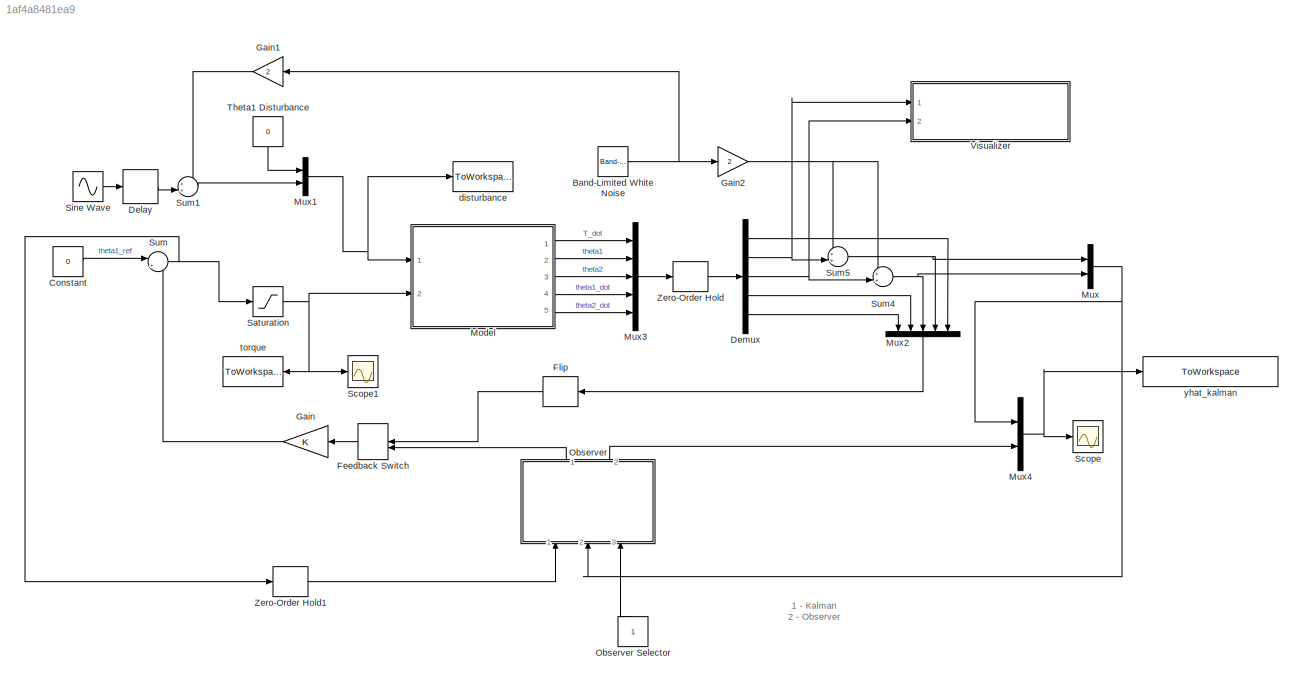
MODEL slx_1af4a8481ea9
KIND model
CONFIG AbsTol = auto
CONFIG EnableMultiTasking = on
CONFIG FixedStep = Ts
CONFIG MaxStep = auto
CONFIG MinStep = auto
CONFIG RelTol = 1e-4
CONFIG SampleTimeConstraint = Unconstrained
CONFIG Solver = VariableStepAuto
CONFIG SolverName = VariableStepAuto
CONFIG StartFcn = par_struct
CONFIG StartTime = 0.0
CONFIG StopTime = 10
WORKSPACE source: MAT-file member
WORKSPACE A = [0.725776748419 0.00140279437205 -0.00302972158237 0.127342671518 -0.275479681015 0 0.999944490331 0.00580760965337 -0.00589430256759 1.15113945046 0 -5.55096688988e-05 ... (25 elements, 5x5)]
WORKSPACE B = [-11.2592502197 -0.00918249434523 0.019826227923 -1.84605491293 3.98706504917]
BLOCK [Reference] Band-Limited White Noise  REF=simulink/Sources/Band-Limited
White Noise
  Ports = [0, 1]
  SourceBlock = simulink/Sources/Band-Limited\nWhite Noise
  SourceProductBaseCode = SL
  SourceProductName = Simulink
  SourceType = Band-Limited White Noise.
BLOCK [Constant] Constant
  SampleTime = -1
  Value = 0
BLOCK [Delay] Delay
  DelayLength = 100
  InputPortMap = u0
  Ports = [1, 1]
  SampleTime = Ts
BLOCK [Demux] Demux
  DisplayOption = bar
  Outputs = 5
  Ports = [1, 5]
BLOCK [ManualSwitch] Feedback Switch
  CurrentSetting = 0
BLOCK [DSPFlip] Flip
BLOCK [Gain] Gain
  Gain = K
  Multiplication = Matrix(K*u)
  OutDataTypeStr = Inherit: Inherit via internal rule
  ParamDataTypeStr = Inherit: Inherit via internal rule
  SaturateOnIntegerOverflow = off
BLOCK [Gain] Gain1
  Gain = 2
  OutDataTypeStr = Inherit: Inherit via internal rule
  ParamDataTypeStr = Inherit: Inherit via internal rule
  SaturateOnIntegerOverflow = off
BLOCK [Gain] Gain2
  Gain = 2
  OutDataTypeStr = Inherit: Inherit via internal rule
  ParamDataTypeStr = Inherit: Inherit via internal rule
  SaturateOnIntegerOverflow = off
BLOCK [ModelReference] Model
  ModelNameDialog = model_v2
  ModelReferenceVersion = 1.96
  Ports = [2, 5]
  Variant = off
BLOCK [Mux] Mux
  DisplayOption = bar
  Inputs = 2
  Ports = [2, 1]
BLOCK [Mux] Mux1
  DisplayOption = bar
  Inputs = 2
  Ports = [2, 1]
BLOCK [Mux] Mux2
  DisplayOption = bar
  Inputs = 5
  Ports = [5, 1]
BLOCK [Mux] Mux3
  DisplayOption = bar
  Inputs = 5
  Ports = [5, 1]
BLOCK [Mux] Mux4
  DisplayOption = bar
  Inputs = 2
  Ports = [2, 1]
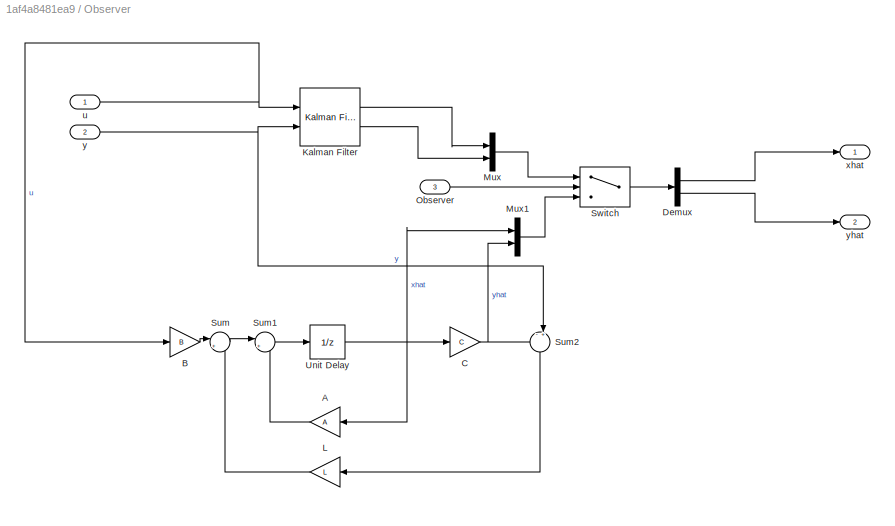
BLOCK [SubSystem] Observer
  Ports = [3, 2]
  RequestExecContextInheritance = off
  Variant = off
BLOCK [Constant] Observer Selector
BLOCK [Gain] Observer/A
  Gain = A
  Multiplication = Matrix(K*u)
  OutDataTypeStr = Inherit: Inherit via internal rule
  ParamDataTypeStr = Inherit: Inherit via internal rule
  SaturateOnIntegerOverflow = off
BLOCK [Gain] Observer/B
  Gain = B
  Multiplication = Matrix(K*u)
  OutDataTypeStr = Inherit: Inherit via internal rule
  ParamDataTypeStr = Inherit: Inherit via internal rule
  SaturateOnIntegerOverflow = off
BLOCK [Gain] Observer/C
  Gain = C
  Multiplication = Matrix(K*u)
  OutDataTypeStr = Inherit: Inherit via internal rule
  ParamDataTypeStr = Inherit: Inherit via internal rule
  SaturateOnIntegerOverflow = off
BLOCK [Demux] Observer/Demux
  DisplayOption = bar
  Outputs = 2
  Ports = [1, 2]
BLOCK [Reference] Observer/Kalman Filter  REF=ctrlSharedLib/Kalman Filter
  Ports = [2, 2]
  SourceBlock = ctrlSharedLib/Kalman Filter
  SourceType = ctrlKalmanFilter
BLOCK [Gain] Observer/L
  Gain = L
  Multiplication = Matrix(K*u)
  OutDataTypeStr = Inherit: Inherit via internal rule
  ParamDataTypeStr = Inherit: Inherit via internal rule
  SaturateOnIntegerOverflow = off
BLOCK [Mux] Observer/Mux
  DisplayOption = bar
  Inputs = 2
  Ports = [2, 1]
BLOCK [Mux] Observer/Mux1
  DisplayOption = bar
  Inputs = 2
  Ports = [2, 1]
BLOCK [Inport] Observer/Observer
  IconDisplay = Port number
  Port = 3
BLOCK [Sum] Observer/Sum
  IconShape = round
  InputSameDT = off
  Inputs = |++
  OutDataTypeStr = Inherit: Inherit via internal rule
  Ports = [2, 1]
  SaturateOnIntegerOverflow = off
BLOCK [Sum] Observer/Sum1
  IconShape = round
  InputSameDT = off
  Inputs = |++
  OutDataTypeStr = Inherit: Inherit via internal rule
  Ports = [2, 1]
  SaturateOnIntegerOverflow = off
BLOCK [Sum] Observer/Sum2
  IconShape = round
  InputSameDT = off
  Inputs = -+|
  OutDataTypeStr = Inherit: Inherit via internal rule
  Ports = [2, 1]
  SaturateOnIntegerOverflow = off
BLOCK [Switch] Observer/Switch
  Criteria = u2 > Threshold
  InputSameDT = off
  SaturateOnIntegerOverflow = off
BLOCK [UnitDelay] Observer/Unit Delay
  InputProcessing = Elements as channels (sample based)
  SampleTime = -1
BLOCK [Inport] Observer/u
  IconDisplay = Port number
BLOCK [Outport] Observer/xhat
  IconDisplay = Port number
  PortDimensions = 5
BLOCK [Inport] Observer/y
  IconDisplay = Port number
  Port = 2
BLOCK [Outport] Observer/yhat
  IconDisplay = Port number
  Port = 2
  PortDimensions = 2
BLOCK [Saturate] Saturation
  InputPortMap = u0
  LowerLimit = -5
  Ports = [1, 1]
  UpperLimit = 5
BLOCK [Scope] Scope
  NumInputPorts = 1
  Ports = [1]
  ScopeSpecificationString = Simulink.scopes.TimeScopeBlockCfg('CurrentConfiguration', extmgr.ConfigurationSet(extmgr.Configuration('Core','General UI',true),extmgr.Configuration('Core','Source UI',true),extmgr.Configuration('Sources','WiredSimulink',true,'DataLoggingVariableName','ScopeData1'),extmgr.Configuration('Visuals','Time Domain',true,'SerializedDisplays',{struct('MinYLimReal','-0.11416','MaxYLimReal','0.10228','YLab...<+1483ch>
BLOCK [Scope] Scope1
  NumInputPorts = 1
  Ports = [1]
  ScopeSpecificationString = Simulink.scopes.TimeScopeBlockCfg('CurrentConfiguration', extmgr.ConfigurationSet(extmgr.Configuration('Core','General UI',true),extmgr.Configuration('Core','Source UI',true),extmgr.Configuration('Sources','WiredSimulink',true),extmgr.Configuration('Visuals','Time Domain',true,'SerializedDisplays',{struct('MinYLimReal','-6.24647','MaxYLimReal','6.21821','YLabelReal','','MinYLimMag','0.00000','MaxY...<+1330ch>
BLOCK [Sin] Sine Wave
  Amplitude = 0.1
  Ports = [0, 1]
  SampleTime = 0
BLOCK [Sum] Sum
  IconShape = round
  InputSameDT = off
  Inputs = |+-
  OutDataTypeStr = Inherit: Inherit via internal rule
  Ports = [2, 1]
  SaturateOnIntegerOverflow = off
BLOCK [Sum] Sum1
  IconShape = round
  InputSameDT = off
  Inputs = ++|
  OutDataTypeStr = Inherit: Inherit via internal rule
  Ports = [2, 1]
  SaturateOnIntegerOverflow = off
BLOCK [Sum] Sum4
  IconShape = round
  InputSameDT = off
  Inputs = ++|
  OutDataTypeStr = Inherit: Inherit via internal rule
  Ports = [2, 1]
  SaturateOnIntegerOverflow = off
BLOCK [Sum] Sum5
  IconShape = round
  InputSameDT = off
  Inputs = ++|
  OutDataTypeStr = Inherit: Inherit via internal rule
  Ports = [2, 1]
  SaturateOnIntegerOverflow = off
BLOCK [Constant] Theta1 Disturbance
  Value = 0
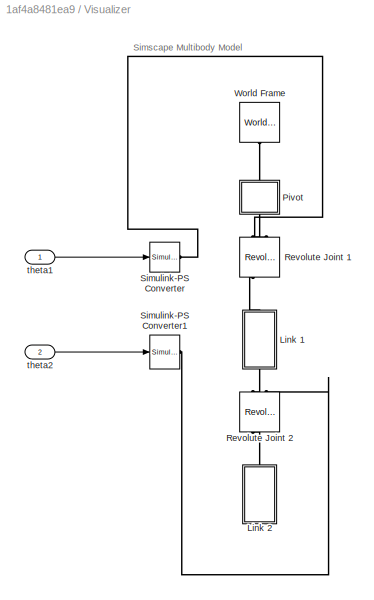
BLOCK [SubSystem] Visualizer
  Ports = [2]
  RequestExecContextInheritance = off
  Variant = off
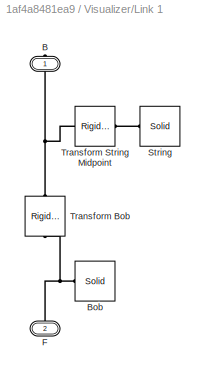
BLOCK [SubSystem] Visualizer/Link 1
  Ports = [0, 0, 0, 0, 0, 1, 1]
  RequestExecContextInheritance = off
  Tag = CustomStyle
  Variant = off
BLOCK [PMIOPort] Visualizer/Link 1/B
  Port = 1
  Side = Right
BLOCK [Reference] Visualizer/Link 1/Bob  REF=sm_lib/Body Elements/Solid
  Ports = [0, 0, 0, 0, 0, 0, 1]
  SourceBlock = sm_lib/Body Elements/Solid
  SourceProductBaseCode = MS
  SourceProductName = Simscape Multibody
  SourceType = Solid
BLOCK [PMIOPort] Visualizer/Link 1/F
  Port = 2
  Side = Left
BLOCK [Reference] Visualizer/Link 1/String  REF=sm_lib/Body Elements/Solid
  Ports = [0, 0, 0, 0, 0, 0, 1]
  SourceBlock = sm_lib/Body Elements/Solid
  SourceProductBaseCode = MS
  SourceProductName = Simscape Multibody
  SourceType = Solid
BLOCK [Reference] Visualizer/Link 1/Transform Bob   REF=sm_lib/Frames and
Transforms/Rigid
Transform
  Ports = [0, 0, 0, 0, 0, 1, 1]
  SourceBlock = sm_lib/Frames and\nTransforms/Rigid\nTransform
  SourceProductBaseCode = MS
  SourceProductName = Simscape Multibody
  SourceType = Rigid\nTransform
BLOCK [Reference] Visualizer/Link 1/Transform String Midpoint  REF=sm_lib/Frames and
Transforms/Rigid
Transform
  Ports = [0, 0, 0, 0, 0, 1, 1]
  SourceBlock = sm_lib/Frames and\nTransforms/Rigid\nTransform
  SourceProductBaseCode = MS
  SourceProductName = Simscape Multibody
  SourceType = Rigid\nTransform
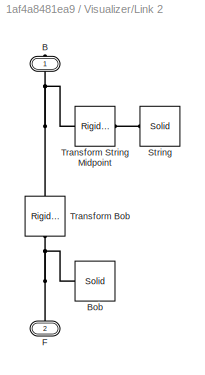
BLOCK [SubSystem] Visualizer/Link 2
  Ports = [0, 0, 0, 0, 0, 1, 1]
  RequestExecContextInheritance = off
  Tag = CustomStyle
  Variant = off
BLOCK [PMIOPort] Visualizer/Link 2/B
  Port = 1
  Side = Right
BLOCK [Reference] Visualizer/Link 2/Bob  REF=sm_lib/Body Elements/Solid
  Ports = [0, 0, 0, 0, 0, 0, 1]
  SourceBlock = sm_lib/Body Elements/Solid
  SourceProductBaseCode = MS
  SourceProductName = Simscape Multibody
  SourceType = Solid
BLOCK [PMIOPort] Visualizer/Link 2/F
  Port = 2
  Side = Left
BLOCK [Reference] Visualizer/Link 2/String  REF=sm_lib/Body Elements/Solid
  Ports = [0, 0, 0, 0, 0, 0, 1]
  SourceBlock = sm_lib/Body Elements/Solid
  SourceProductBaseCode = MS
  SourceProductName = Simscape Multibody
  SourceType = Solid
BLOCK [Reference] Visualizer/Link 2/Transform Bob   REF=sm_lib/Frames and
Transforms/Rigid
Transform
  Ports = [0, 0, 0, 0, 0, 1, 1]
  SourceBlock = sm_lib/Frames and\nTransforms/Rigid\nTransform
  SourceProductBaseCode = MS
  SourceProductName = Simscape Multibody
  SourceType = Rigid\nTransform
BLOCK [Reference] Visualizer/Link 2/Transform String Midpoint  REF=sm_lib/Frames and
Transforms/Rigid
Transform
  Ports = [0, 0, 0, 0, 0, 1, 1]
  SourceBlock = sm_lib/Frames and\nTransforms/Rigid\nTransform
  SourceProductBaseCode = MS
  SourceProductName = Simscape Multibody
  SourceType = Rigid\nTransform
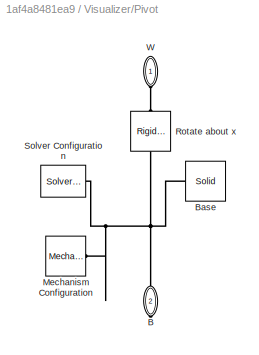
BLOCK [SubSystem] Visualizer/Pivot
  Ports = [0, 0, 0, 0, 0, 1, 1]
  RequestExecContextInheritance = off
  Tag = CustomStyle
  Variant = off
BLOCK [PMIOPort] Visualizer/Pivot/B
  Port = 2
  Side = Right
BLOCK [Reference] Visualizer/Pivot/Base  REF=sm_lib/Body Elements/Solid
  Ports = [0, 0, 0, 0, 0, 0, 1]
  SourceBlock = sm_lib/Body Elements/Solid
  SourceProductBaseCode = MS
  SourceProductName = Simscape Multibody
  SourceType = Solid
BLOCK [Reference] Visualizer/Pivot/Mechanism Configuration  REF=sm_lib/Utilities/Mechanism
Configuration
  Ports = [0, 0, 0, 0, 0, 0, 1]
  SourceBlock = sm_lib/Utilities/Mechanism\nConfiguration
  SourceProductBaseCode = MS
  SourceProductName = Simscape Multibody
  SourceType = Mechanism\nConfiguration
BLOCK [Reference] Visualizer/Pivot/Rotate about x  REF=sm_lib/Frames and
Transforms/Rigid
Transform
  Ports = [0, 0, 0, 0, 0, 1, 1]
  SourceBlock = sm_lib/Frames and\nTransforms/Rigid\nTransform
  SourceProductBaseCode = MS
  SourceProductName = Simscape Multibody
  SourceType = Rigid\nTransform
BLOCK [Reference] Visualizer/Pivot/Solver Configuration  REF=nesl_utility/Solver
Configuration
  Ports = [0, 0, 0, 0, 0, 0, 1]
  SourceBlock = nesl_utility/Solver\nConfiguration
  SourceProductBaseCode = SS
  SourceProductName = Simscape
  SourceType = Solver\nConfiguration
BLOCK [PMIOPort] Visualizer/Pivot/W
  Port = 1
  Side = Left
BLOCK [Reference] Visualizer/Revolute Joint 1  REF=sm_lib/Joints/Revolute Joint
  Ports = [0, 0, 0, 0, 0, 2, 2]
  SourceBlock = sm_lib/Joints/Revolute Joint
  SourceProductBaseCode = MS
  SourceProductName = Simscape Multibody
  SourceType = Revolute Joint
BLOCK [Reference] Visualizer/Revolute Joint 2  REF=sm_lib/Joints/Revolute Joint
  Ports = [0, 0, 0, 0, 0, 2, 2]
  SourceBlock = sm_lib/Joints/Revolute Joint
  SourceProductBaseCode = MS
  SourceProductName = Simscape Multibody
  SourceType = Revolute Joint
BLOCK [Reference] Visualizer/Simulink-PS Converter  REF=nesl_utility/Simulink-PS
Converter
  Ports = [1, 0, 0, 0, 0, 0, 1]
  SourceBlock = nesl_utility/Simulink-PS\nConverter
  SourceProductBaseCode = SS
  SourceProductName = Simscape
  SourceType = Simulink-PS\nConverter
BLOCK [Reference] Visualizer/Simulink-PS Converter1  REF=nesl_utility/Simulink-PS
Converter
  Ports = [1, 0, 0, 0, 0, 0, 1]
  SourceBlock = nesl_utility/Simulink-PS\nConverter
  SourceProductBaseCode = SS
  SourceProductName = Simscape
  SourceType = Simulink-PS\nConverter
BLOCK [Reference] Visualizer/World Frame  REF=sm_lib/Frames and
Transforms/World Frame
  Ports = [0, 0, 0, 0, 0, 0, 1]
  SourceBlock = sm_lib/Frames and\nTransforms/World Frame
  SourceProductBaseCode = MS
  SourceProductName = Simscape Multibody
  SourceType = World Frame
BLOCK [Inport] Visualizer/theta1
  IconDisplay = Port number
BLOCK [Inport] Visualizer/theta2
  IconDisplay = Port number
  Port = 2
BLOCK [ZeroOrderHold] Zero-Order Hold
  SampleTime = Ts
BLOCK [ZeroOrderHold] Zero-Order Hold1
  SampleTime = Ts
BLOCK [ToWorkspace] disturbance
  FixptAsFi = on
  MaxDataPoints = inf
  Ports = [1]
  SampleTime = -1
  Save2DSignal = 3-D array (concatenate along third dimension)
  SaveFormat = Timeseries
  VariableName = disturbance
BLOCK [ToWorkspace] torque
  FixptAsFi = on
  MaxDataPoints = inf
  Ports = [1]
  SampleTime = -1
  Save2DSignal = 3-D array (concatenate along third dimension)
  SaveFormat = Timeseries
  VariableName = torque
BLOCK [ToWorkspace] yhat_kalman
  FixptAsFi = on
  MaxDataPoints = inf
  Ports = [1]
  SampleTime = -1
  Save2DSignal = 3-D array (concatenate along third dimension)
  SaveFormat = Timeseries
  VariableName = yhat_observer
ANNOTATION (root): 1 - Kalman 2 - Observer
ANNOTATION Visualizer: Simscape Multibody Model
NET Band-Limited White Noise:1 -> Gain1:1, Gain2:1
LINE Constant:1 -> Sum:1
LINE Delay:1 -> Sum1:2
LINE Demux:1 -> Mux2:5
NET Demux:2 -> Sum5:2, Visualizer:1
NET Demux:3 -> Sum4:2, Visualizer:2
LINE Demux:4 -> Mux2:2
LINE Demux:5 -> Mux2:1
LINE Feedback Switch:1 -> Gain:1
LINE Flip:1 -> Feedback Switch:1
LINE Gain1:1 -> Sum1:1
NET Gain2:1 -> Sum4:1, Sum5:1
LINE Gain:1 -> Sum:2
LINE Model:1 -> Mux3:1
LINE Model:2 -> Mux3:2
LINE Model:3 -> Mux3:3
LINE Model:4 -> Mux3:4
LINE Model:5 -> Mux3:5
NET Mux1:1 -> Model:1, disturbance:1
LINE Mux2:1 -> Flip:1
LINE Mux3:1 -> Zero-Order Hold:1
NET Mux4:1 -> Scope:1, yhat_kalman:1
NET Mux:1 -> Mux4:1, Observer:2
LINE Observer Selector:1 -> Observer:3
LINE Observer/A:1 -> Observer/Sum1:2
LINE Observer/B:1 -> Observer/Sum:1
NET Observer/C:1 -> Observer/Mux1:2, Observer/Sum2:1
LINE Observer/Demux:1 -> Observer/xhat:1
LINE Observer/Demux:2 -> Observer/yhat:1
LINE Observer/Kalman Filter:1 -> Observer/Mux:1
LINE Observer/Kalman Filter:2 -> Observer/Mux:2
LINE Observer/L:1 -> Observer/Sum:2
LINE Observer/Mux1:1 -> Observer/Switch:3
LINE Observer/Mux:1 -> Observer/Switch:1
LINE Observer/Observer:1 -> Observer/Switch:2
LINE Observer/Sum1:1 -> Observer/Unit Delay:1
LINE Observer/Sum2:1 -> Observer/L:1
LINE Observer/Sum:1 -> Observer/Sum1:1
LINE Observer/Switch:1 -> Observer/Demux:1
NET Observer/Unit Delay:1 -> Observer/A:1, Observer/C:1, Observer/Mux1:1
NET Observer/u:1 -> Observer/B:1, Observer/Kalman Filter:1
NET Observer/y:1 -> Observer/Kalman Filter:2, Observer/Sum2:2
LINE Observer:1 -> Feedback Switch:2
LINE Observer:2 -> Mux4:2
NET Saturation:1 -> Model:2, Scope1:1, torque:1
LINE Sine Wave:1 -> Delay:1
LINE Sum1:1 -> Mux1:2
NET Sum4:1 -> Mux2:3, Mux:2
NET Sum5:1 -> Mux2:4, Mux:1
NET Sum:1 -> Saturation:1, Zero-Order Hold1:1
LINE Theta1 Disturbance:1 -> Mux1:1
LINE Visualizer/theta1:1 -> Visualizer/Simulink-PS Converter:1
LINE Visualizer/theta2:1 -> Visualizer/Simulink-PS Converter1:1
LINE Zero-Order Hold1:1 -> Observer:1
LINE Zero-Order Hold:1 -> Demux:1
PNET net1: Visualizer/Link 1/B:RConn1 -- Visualizer/Link 1/Transform Bob :LConn1 -- Visualizer/Link 1/Transform String Midpoint:LConn1
PNET net2: Visualizer/Link 1/Bob:RConn1 -- Visualizer/Link 1/F:RConn1 -- Visualizer/Link 1/Transform Bob :RConn1
PLINE Visualizer/Link 1/String:RConn1 -- Visualizer/Link 1/Transform String Midpoint:RConn1
PLINE Visualizer/Link 1:LConn1 -- Visualizer/Revolute Joint 2:LConn1
PLINE Visualizer/Link 1:RConn1 -- Visualizer/Revolute Joint 1:RConn1
PNET net3: Visualizer/Link 2/B:RConn1 -- Visualizer/Link 2/Transform Bob :LConn1 -- Visualizer/Link 2/Transform String Midpoint:LConn1
PNET net4: Visualizer/Link 2/Bob:RConn1 -- Visualizer/Link 2/F:RConn1 -- Visualizer/Link 2/Transform Bob :RConn1
PLINE Visualizer/Link 2/String:RConn1 -- Visualizer/Link 2/Transform String Midpoint:RConn1
PLINE Visualizer/Link 2:RConn1 -- Visualizer/Revolute Joint 2:RConn1
PNET net5: Visualizer/Pivot/B:RConn1 -- Visualizer/Pivot/Base:RConn1 -- Visualizer/Pivot/Mechanism Configuration:RConn1 -- Visualizer/Pivot/Rotate about x:RConn1 -- Visualizer/Pivot/Solver Configuration:RConn1
PLINE Visualizer/Pivot/Rotate about x:LConn1 -- Visualizer/Pivot/W:RConn1
PLINE Visualizer/Pivot:LConn1 -- Visualizer/World Frame:RConn1
PLINE Visualizer/Pivot:RConn1 -- Visualizer/Revolute Joint 1:LConn1
PLINE Visualizer/Revolute Joint 1:LConn2 -- Visualizer/Simulink-PS Converter:RConn1
PLINE Visualizer/Revolute Joint 2:LConn2 -- Visualizer/Simulink-PS Converter1:RConn1
note: NET lines group one-source signal fan-out (src -> all destinations, sorted); 1:1 wires keep LINE; PNET lines group multi-terminal physical nets as a canonical sorted terminal list (undirected conserving connections); 2-terminal nets keep the pairwise PLINE form
